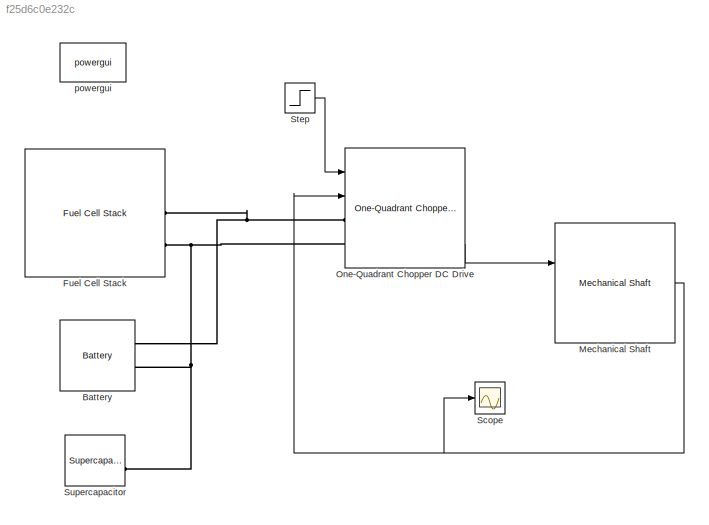
MODEL slx_f25d6c0e232c
KIND model
BLOCK [Reference] Battery  REF=electricdrivelib/Extra Sources/Battery
  BatType = Nickel-Metal-Hydride
  Batt_Tr = 30
  Dis_Char = off
  Dis_rate = 1.3
  FullV = 1.4136
  MaxQ = 7
  NomQ = 6.5
  NomV = 42
  Normal_OP = 6.25
  Ports = [0, 1, 0, 0, 0, 2]
  PresetModel = on
  R = 0.0018462
  SOC = 100
  ShowDetailedParameters = off
  SourceBlock = electricdrivelib/Extra Sources/Battery
  SourceType = Battery
  Units = Time
  current = [6.5 13 32.5]
  expZone = [1.3017         1.3]
BLOCK [Reference] Fuel Cell Stack  REF=electricdrivelib/Extra Sources/Fuel Cell Stack
  AirFr = 2400
  Comp = [99.95           21            1]
  Detailed = Detailed
  EndVI = [100   20]
  Eoc = [42  35]
  FCDyn = off
  FC_tau = 1
  FcType = Proton Exchange Membrane (PEM)
  FlowRateAir = off
  FlowRateH2 = off
  Nc = 42
  NomVI = [52        24.23]
  Peak_O2 = 80
  Ports = [0, 1, 0, 0, 0, 0, 2]
  PresetModel = PEMFC - 1.26 kW - 24 Vdc
  SignX = off
  SignY = off
  SourceBlock = electricdrivelib/Extra Sources/Fuel Cell Stack
  SourceType = Fuel Cell Stack
  SuppPress = [1.5           1]
  SystemPAir = off
  SystemPH2 = off
  SystemTemp = off
  TOp = 55
  V_Under = 10
  ViewParam = off
  n = 46
  plot_graph = off
BLOCK [Reference] Mechanical Shaft  REF=electricdrivelib/Shafts and speed reducers/Mechanical Shaft
  Bsh = 600
  Ksh = 17190
  Ports = [2, 1]
  PresetModel = 01 : Tln = 200 N-m
  SourceBlock = electricdrivelib/Shafts and speed reducers/Mechanical Shaft
  SourceType = Mechanical Shaft
BLOCK [Reference] One-Quadrant Chopper DC Drive  REF=electricdrivelib/DC drives/One-Quadrant
Chopper DC Drive
  AverageValue = off
  MechanicalLoad = Torque Tm
  Ports = [2, 4, 0, 0, 0, 2]
  SourceBlock = electricdrivelib/DC drives/One-Quadrant\nChopper DC Drive
  SourceType = One-Quadrant Chopper DC Drive
  UserDataPersistent = on
  driveType = DC5
  showMaskWarnings = on
BLOCK [Scope] Scope
  DataFormat = StructureWithTime
  Floating = off
  NumInputPorts = 1
  Ports = [1]
  SampleTime = 0
  ShowLegends = off
  YMax = 3.75e-05
  YMin = -2e-05
BLOCK [Step] Step
  SampleTime = 0
  Time = 100
BLOCK [Reference] Supercapacitor  REF=electricdrivelib/Extra Sources/Supercapacitor
  C = 500
  I = 10.2
  If = 5.2e-3
  Nc = 6
  Np = 1
  Ns = 6
  Ports = [0, 1, 0, 0, 0, 2]
  PresetModel = off
  Rdc = 2.1e-3
  SourceBlock = electricdrivelib/Extra Sources/Supercapacitor
  SourceType = Supercapacitor
  Temp = 25
  Vinit = 16
  Vmax = 17
  Voltage = 16
  alpha = 0.3
  deltaV = 0.3
  demandeplot = off
  r = 1.23e-9
  sec = 1988
BLOCK [Reference] powergui  REF=powerlib/powergui
  DisableRonSwitches = off
  DisableSnubberDevices = off
  DisableVfSwitches = off
  DisplayEquations = off
  DisplayStyle = 1
  EnableUseOfTLC = off
  ErrMax = 1e-4
  Frange = [0:2:500]
  FreqAxis = off
  FunctionMessages = off
  HookPort = off
  Interpol = off
  Iterations = 50
  MaxFrequency = 1000
  Pbase = 100e6
  Ports = []
  Priority = 1
  ResistiveCurrentMeasurement = off
  RestoreLinks = warning
  RmsSteady = 1
  SPID = off
  SampleTime = 1e-6
  ShowGrid = off
  SolverType = Tustin
  SourceBlock = powerlib/powergui
  SourceType = PSB option menu block
  StartTime = 0.0
  SwTol = 0
  Ts = 0
  UnitsV = kV
  UnitsW = MW
  UserDataPersistent = on
  Xlog = on
  Ylog = off
  ZoomFFT = off
  cycles = 1
  display = off
  echomessages = off
  frequency = 60
  frequencyindice = 0
  frequencyindicesteady = 1
  fundamental = 60
  methode = off
  save = off
  variable = ZData
  x0status = blocks
NET Mechanical Shaft:1 -> One-Quadrant Chopper DC Drive:2, Scope:1
LINE One-Quadrant Chopper DC Drive:4 -> Mechanical Shaft:1
LINE Step:1 -> One-Quadrant Chopper DC Drive:1
PNET net1: Battery:LConn1 -- Fuel Cell Stack:RConn1 -- One-Quadrant Chopper DC Drive:LConn1
PNET net2: Battery:LConn2 -- Fuel Cell Stack:RConn2 -- One-Quadrant Chopper DC Drive:LConn2 -- Supercapacitor:LConn2
note: NET lines group one-source signal fan-out (src -> all destinations, sorted); 1:1 wires keep LINE; PNET lines group multi-terminal physical nets as a canonical sorted terminal list (undirected conserving connections); 2-terminal nets keep the pairwise PLINE form
